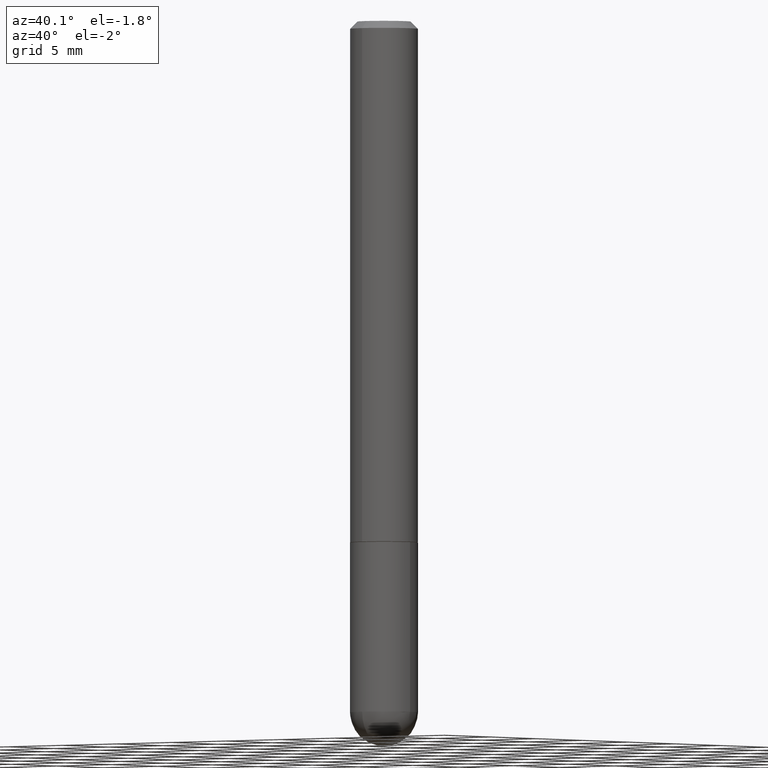
[diagram: clean part render]
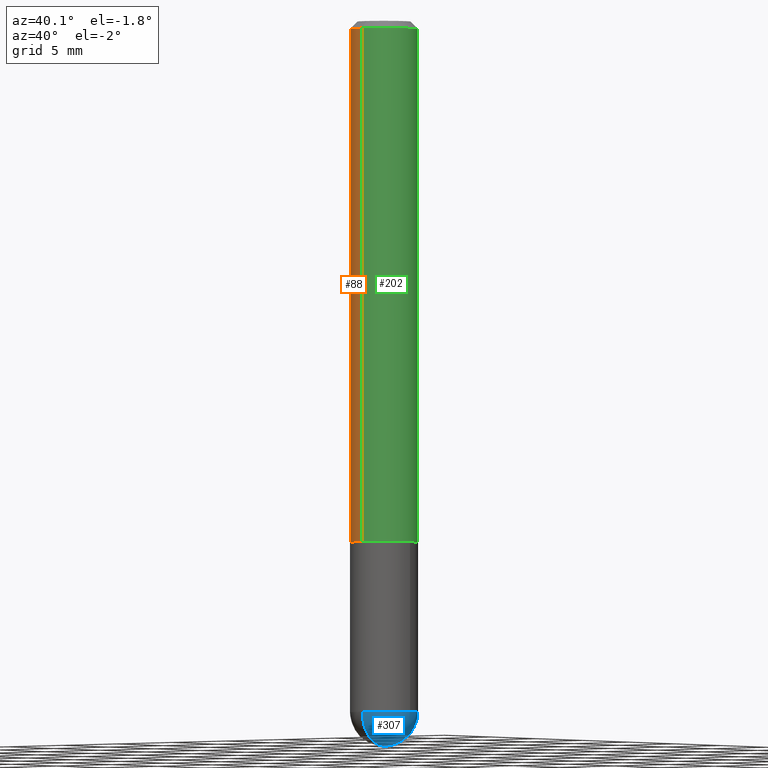
[diagram: same view with three faces highlighted in distinct colors, each labeled with its STEP entity id]
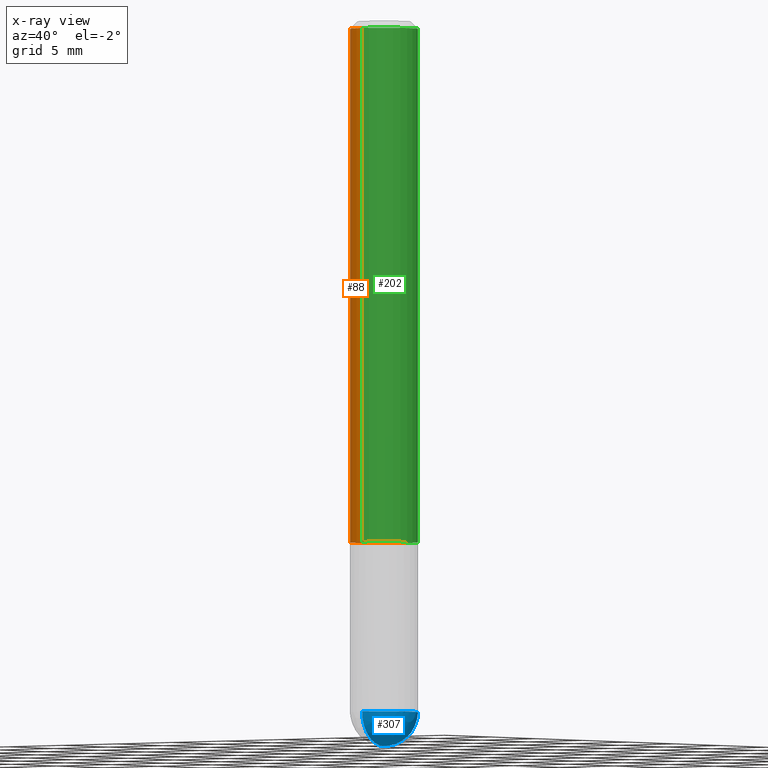
[diagram: x-ray of the same camera — body ghosted, the three highlighted faces saturated]
A machine part, auxiliary view with three faces highlighted in distinct colors.
The next image is the same camera in x-ray (body ghosted, the three faces saturated) — at least one of them is partly hidden behind the body in this view.
Their STEP definitions:

[orange] entity #88 — the highlighted cylindrical surface (edge-blend (fillet) strip) has radius 2.3813 mm, axis along (-0, 0, 1).
#11 = CARTESIAN_POINT ( 'NONE',  ( 6.661338147751125611E-16, 0.09374999999999515665, -1.437000000000000277 ) ) ;
#27 = DIRECTION ( 'NONE',  ( -2.446041994382864894E-29, 3.490660500720152022E-15, 1.000000000000000000 ) ) ;
#37 = VECTOR ( 'NONE', #27, 39.37007874015748143 ) ;
#47 = CYLINDRICAL_SURFACE ( 'NONE', #368, 0.09375000000000009714 ) ;
#52 = DIRECTION ( 'NONE',  ( -2.446041994382864894E-29, 3.490660500720152417E-15, 1.000000000000000000 ) ) ;
#59 = DIRECTION ( 'NONE',  ( -6.982962677686265922E-15, -1.000000000000000000, 3.490660500720152811E-15 ) ) ;
#88 = ADVANCED_FACE ( 'NONE', ( #333 ), #47, .T. ) ;
#89 = DIRECTION ( 'NONE',  ( -6.982962677686265922E-15, -1.000000000000000000, 3.505871591869137304E-15 ) ) ;
#96 = EDGE_CURVE ( 'NONE', #113, #207, #192, .T. ) ;
#97 = DIRECTION ( 'NONE',  ( -2.446041994382864894E-29, 3.490660500720152022E-15, 1.000000000000000000 ) ) ;
#113 = VERTEX_POINT ( 'NONE', #11 ) ;
#118 = VERTEX_POINT ( 'NONE', #306 ) ;
#184 = DIRECTION ( 'NONE',  ( -2.446041994382864894E-29, 3.490660500720152417E-15, 1.000000000000000000 ) ) ;
#186 = CARTESIAN_POINT ( 'NONE',  ( 4.892083988765733782E-31, -6.981321001440310454E-17, -0.02000000000000001776 ) ) ;
#192 = CIRCLE ( 'NONE', #401, 0.09375000000000019429 ) ;
#197 = CARTESIAN_POINT ( 'NONE',  ( 6.546527510330879972E-16, 0.09374999999999994449, -0.02000000000000034736 ) ) ;
#205 = DIRECTION ( 'NONE',  ( -6.982962677686266711E-15, -1.000000000000000000, 2.913971193241874850E-15 ) ) ;
#207 = VERTEX_POINT ( 'NONE', #279 ) ;
#215 = VERTEX_POINT ( 'NONE', #197 ) ;
#223 = LINE ( 'NONE', #384, #270 ) ;
#237 = EDGE_CURVE ( 'NONE', #113, #215, #386, .T. ) ;
#244 = CARTESIAN_POINT ( 'NONE',  ( 3.514962345928176845E-29, -5.016079139534859416E-15, -1.437000000000000055 ) ) ;
#249 = EDGE_CURVE ( 'NONE', #215, #118, #411, .T. ) ;
#262 = AXIS2_PLACEMENT_3D ( 'NONE', #186, #308, #89 ) ;
#264 = ORIENTED_EDGE ( 'NONE', *, *, #237, .F. ) ;
#266 = EDGE_LOOP ( 'NONE', ( #264, #268, #359, #272 ) ) ;
#268 = ORIENTED_EDGE ( 'NONE', *, *, #96, .T. ) ;
#270 = VECTOR ( 'NONE', #97, 39.37007874015748143 ) ;
#272 = ORIENTED_EDGE ( 'NONE', *, *, #249, .F. ) ;
#279 = CARTESIAN_POINT ( 'NONE',  ( -6.546527510330536817E-16, -0.09375000000000521805, -1.436999999999999833 ) ) ;
#306 = CARTESIAN_POINT ( 'NONE',  ( -6.431716872910805909E-16, -0.09375000000000006939, -0.01999999999999968817 ) ) ;
#308 = DIRECTION ( 'NONE',  ( -2.446041994382864894E-29, 3.490660500720152417E-15, 1.000000000000000000 ) ) ;
#323 = EDGE_CURVE ( 'NONE', #207, #118, #223, .T. ) ;
#333 = FACE_OUTER_BOUND ( 'NONE', #266, .T. ) ;
#343 = CARTESIAN_POINT ( 'NONE',  ( 6.661338147750944173E-16, 0.09375000000000009714, -3.272494219425146588E-16 ) ) ;
#359 = ORIENTED_EDGE ( 'NONE', *, *, #323, .T. ) ;
#368 = AXIS2_PLACEMENT_3D ( 'NONE', #398, #184, #59 ) ;
#384 = CARTESIAN_POINT ( 'NONE',  ( -6.546527510330880958E-16, -0.09375000000000009714, 3.272494219425146588E-16 ) ) ;
#386 = LINE ( 'NONE', #343, #37 ) ;
#398 = CARTESIAN_POINT ( 'NONE',  ( 0.000000000000000000, 0.000000000000000000, 0.000000000000000000 ) ) ;
#401 = AXIS2_PLACEMENT_3D ( 'NONE', #244, #52, #205 ) ;
#411 = CIRCLE ( 'NONE', #262, 0.09375000000000001388 ) ;

[blue] entity #307 — the highlighted spherical surface has radius 2.3813 mm.
#16 = CARTESIAN_POINT ( 'NONE',  ( -6.661338147750496494E-16, -0.09375000000000702216, -1.906249999999999556 ) ) ;
#30 = EDGE_CURVE ( 'NONE', #185, #366, #121, .T. ) ;
#33 = SPHERICAL_SURFACE ( 'NONE', #75, 0.09375000000000026368 ) ;
#42 = AXIS2_PLACEMENT_3D ( 'NONE', #281, #314, #124 ) ;
#48 = DIRECTION ( 'NONE',  ( 1.000000000000000000, -6.982962677686265922E-15, 4.883557194083112340E-29 ) ) ;
#58 = CARTESIAN_POINT ( 'NONE',  ( 4.563826426436916486E-29, -7.451404513955337857E-15, -2.000000000000000444 ) ) ;
#65 = AXIS2_PLACEMENT_3D ( 'NONE', #181, #331, #339 ) ;
#75 = AXIS2_PLACEMENT_3D ( 'NONE', #159, #282, #345 ) ;
#103 = EDGE_CURVE ( 'NONE', #108, #185, #170, .T. ) ;
#106 = CARTESIAN_POINT ( 'NONE',  ( 0.09374999999999998612, -6.492845984746181359E-15, -1.906250000000000000 ) ) ;
#108 = VERTEX_POINT ( 'NONE', #58 ) ;
#110 = EDGE_LOOP ( 'NONE', ( #297, #242, #402, #372 ) ) ;
#121 = CIRCLE ( 'NONE', #347, 0.09374999999999998612 ) ;
#124 = DIRECTION ( 'NONE',  ( 1.000000000000000000, -6.982962677686263555E-15, 0.000000000000000000 ) ) ;
#136 = DIRECTION ( 'NONE',  ( 6.982962677686265133E-15, 1.000000000000000000, 0.000000000000000000 ) ) ;
#159 = CARTESIAN_POINT ( 'NONE',  ( 4.330555133876530390E-29, -7.129818670309794948E-15, -1.906250000000000000 ) ) ;
#169 = DIRECTION ( 'NONE',  ( -2.445468806185136597E-29, 3.491481338843145583E-15, 1.000000000000000000 ) ) ;
#170 = CIRCLE ( 'NONE', #65, 0.09375000000000026368 ) ;
#181 = CARTESIAN_POINT ( 'NONE',  ( 4.330555133876530390E-29, -7.129818670309794948E-15, -1.906250000000000000 ) ) ;
#185 = VERTEX_POINT ( 'NONE', #16 ) ;
#232 = CARTESIAN_POINT ( 'NONE',  ( 6.546527510331332580E-16, 0.09374999999999322764, -1.906250000000000222 ) ) ;
#242 = ORIENTED_EDGE ( 'NONE', *, *, #356, .T. ) ;
#259 = AXIS2_PLACEMENT_3D ( 'NONE', #321, #48, #136 ) ;
#260 = CARTESIAN_POINT ( 'NONE',  ( 4.661674911790416638E-29, -6.655636302169745441E-15, -1.906250000000000000 ) ) ;
#281 = CARTESIAN_POINT ( 'NONE',  ( 4.661674911790416638E-29, -6.655636302169745441E-15, -1.906250000000000000 ) ) ;
#282 = DIRECTION ( 'NONE',  ( -1.000000000000000000, 6.982962677686265133E-15, -4.883557194083112901E-29 ) ) ;
#283 = EDGE_CURVE ( 'NONE', #366, #392, #363, .T. ) ;
#292 = DIRECTION ( 'NONE',  ( 1.000000000000000000, -6.982962677686263555E-15, 0.000000000000000000 ) ) ;
#297 = ORIENTED_EDGE ( 'NONE', *, *, #103, .F. ) ;
#307 = ADVANCED_FACE ( 'NONE', ( #376 ), #33, .T. ) ;
#314 = DIRECTION ( 'NONE',  ( -2.445468806185136597E-29, 3.491481338843145583E-15, 1.000000000000000000 ) ) ;
#321 = CARTESIAN_POINT ( 'NONE',  ( 4.330555133876530390E-29, -7.129818670309794948E-15, -1.906250000000000000 ) ) ;
#331 = DIRECTION ( 'NONE',  ( -1.000000000000000000, 7.105427357601001070E-15, -4.926315508542082329E-29 ) ) ;
#339 = DIRECTION ( 'NONE',  ( -7.105427357601001070E-15, -1.000000000000000000, 0.000000000000000000 ) ) ;
#345 = DIRECTION ( 'NONE',  ( 6.982962677686265133E-15, 1.000000000000000000, -2.913971193241872483E-15 ) ) ;
#347 = AXIS2_PLACEMENT_3D ( 'NONE', #260, #169, #292 ) ;
#356 = EDGE_CURVE ( 'NONE', #108, #392, #397, .T. ) ;
#363 = CIRCLE ( 'NONE', #42, 0.09374999999999998612 ) ;
#366 = VERTEX_POINT ( 'NONE', #106 ) ;
#372 = ORIENTED_EDGE ( 'NONE', *, *, #30, .F. ) ;
#376 = FACE_OUTER_BOUND ( 'NONE', #110, .T. ) ;
#392 = VERTEX_POINT ( 'NONE', #232 ) ;
#397 = CIRCLE ( 'NONE', #259, 0.09375000000000026368 ) ;
#402 = ORIENTED_EDGE ( 'NONE', *, *, #283, .F. ) ;

[green] entity #202 — the highlighted cylindrical surface (edge-blend (fillet) strip) has radius 2.3813 mm, axis along (-0, 0, 1).
#1 = DIRECTION ( 'NONE',  ( -2.446041994382864894E-29, 3.490660500720152417E-15, 1.000000000000000000 ) ) ;
#11 = CARTESIAN_POINT ( 'NONE',  ( 6.661338147751125611E-16, 0.09374999999999515665, -1.437000000000000277 ) ) ;
#19 = AXIS2_PLACEMENT_3D ( 'NONE', #250, #1, #191 ) ;
#23 = ORIENTED_EDGE ( 'NONE', *, *, #174, .T. ) ;
#27 = DIRECTION ( 'NONE',  ( -2.446041994382864894E-29, 3.490660500720152022E-15, 1.000000000000000000 ) ) ;
#37 = VECTOR ( 'NONE', #27, 39.37007874015748143 ) ;
#38 = DIRECTION ( 'NONE',  ( -2.446041994382864894E-29, 3.490660500720152417E-15, 1.000000000000000000 ) ) ;
#55 = EDGE_CURVE ( 'NONE', #118, #215, #142, .T. ) ;
#71 = CARTESIAN_POINT ( 'NONE',  ( 4.892083988765733782E-31, -6.981321001440310454E-17, -0.02000000000000001776 ) ) ;
#77 = ORIENTED_EDGE ( 'NONE', *, *, #237, .T. ) ;
#78 = DIRECTION ( 'NONE',  ( -2.446041994382864894E-29, 3.490660500720152417E-15, 1.000000000000000000 ) ) ;
#97 = DIRECTION ( 'NONE',  ( -2.446041994382864894E-29, 3.490660500720152022E-15, 1.000000000000000000 ) ) ;
#102 = AXIS2_PLACEMENT_3D ( 'NONE', #214, #78, #267 ) ;
#113 = VERTEX_POINT ( 'NONE', #11 ) ;
#118 = VERTEX_POINT ( 'NONE', #306 ) ;
#123 = FACE_OUTER_BOUND ( 'NONE', #295, .T. ) ;
#142 = CIRCLE ( 'NONE', #336, 0.09375000000000001388 ) ;
#163 = DIRECTION ( 'NONE',  ( -6.982962677686265922E-15, -1.000000000000000000, 3.505871591869137304E-15 ) ) ;
#174 = EDGE_CURVE ( 'NONE', #207, #113, #187, .T. ) ;
#187 = CIRCLE ( 'NONE', #102, 0.09375000000000019429 ) ;
#191 = DIRECTION ( 'NONE',  ( -6.982962677686265922E-15, -1.000000000000000000, 3.490660500720152811E-15 ) ) ;
#197 = CARTESIAN_POINT ( 'NONE',  ( 6.546527510330879972E-16, 0.09374999999999994449, -0.02000000000000034736 ) ) ;
#202 = ADVANCED_FACE ( 'NONE', ( #123 ), #350, .T. ) ;
#207 = VERTEX_POINT ( 'NONE', #279 ) ;
#214 = CARTESIAN_POINT ( 'NONE',  ( 3.514962345928176845E-29, -5.016079139534859416E-15, -1.437000000000000055 ) ) ;
#215 = VERTEX_POINT ( 'NONE', #197 ) ;
#223 = LINE ( 'NONE', #384, #270 ) ;
#237 = EDGE_CURVE ( 'NONE', #113, #215, #386, .T. ) ;
#250 = CARTESIAN_POINT ( 'NONE',  ( 0.000000000000000000, 0.000000000000000000, 0.000000000000000000 ) ) ;
#267 = DIRECTION ( 'NONE',  ( -6.982962677686266711E-15, -1.000000000000000000, 2.913971193241874850E-15 ) ) ;
#270 = VECTOR ( 'NONE', #97, 39.37007874015748143 ) ;
#271 = ORIENTED_EDGE ( 'NONE', *, *, #55, .F. ) ;
#279 = CARTESIAN_POINT ( 'NONE',  ( -6.546527510330536817E-16, -0.09375000000000521805, -1.436999999999999833 ) ) ;
#295 = EDGE_LOOP ( 'NONE', ( #23, #77, #271, #362 ) ) ;
#306 = CARTESIAN_POINT ( 'NONE',  ( -6.431716872910805909E-16, -0.09375000000000006939, -0.01999999999999968817 ) ) ;
#323 = EDGE_CURVE ( 'NONE', #207, #118, #223, .T. ) ;
#336 = AXIS2_PLACEMENT_3D ( 'NONE', #71, #38, #163 ) ;
#343 = CARTESIAN_POINT ( 'NONE',  ( 6.661338147750944173E-16, 0.09375000000000009714, -3.272494219425146588E-16 ) ) ;
#350 = CYLINDRICAL_SURFACE ( 'NONE', #19, 0.09375000000000009714 ) ;
#362 = ORIENTED_EDGE ( 'NONE', *, *, #323, .F. ) ;
#384 = CARTESIAN_POINT ( 'NONE',  ( -6.546527510330880958E-16, -0.09375000000000009714, 3.272494219425146588E-16 ) ) ;
#386 = LINE ( 'NONE', #343, #37 ) ;